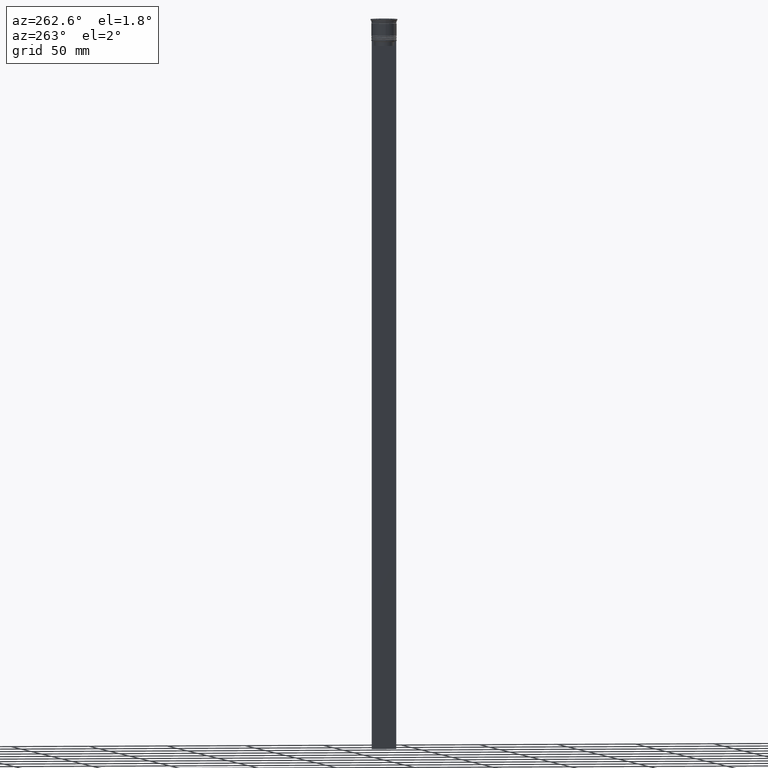
[diagram: clean part render]
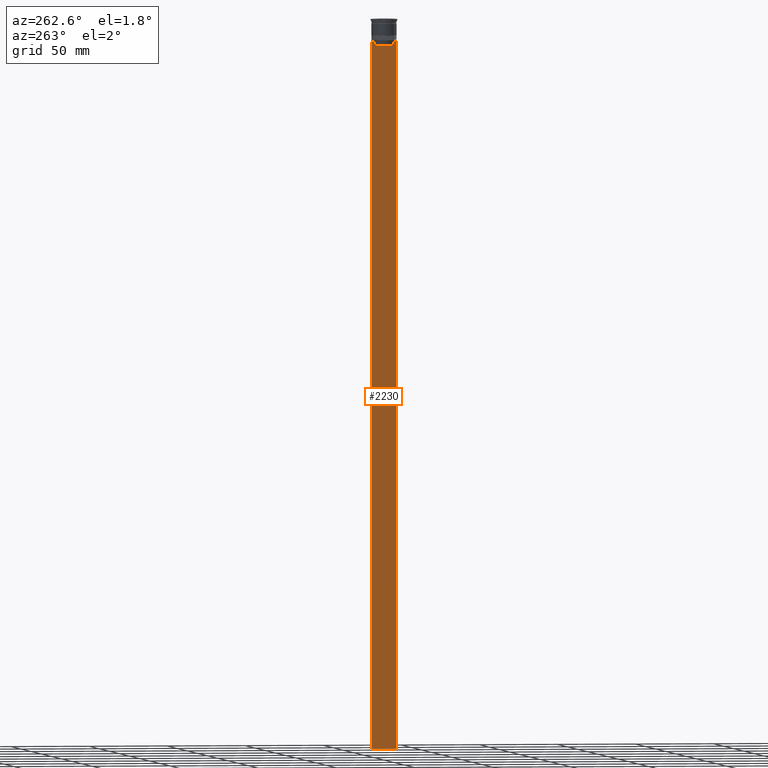
[diagram: same view with one face highlighted and labeled with its STEP entity id]
A machine part, auxiliary view. The second image highlights one B-rep face of the part: STEP entity #2230.
In plain terms, the highlighted planar face has unit normal (-1, 0, 0).
Its self-contained STEP definition (entity closure, byte-faithful):
#7 = VERTEX_POINT ( 'NONE', #2393 ) ;
#22 = DIRECTION ( 'NONE',  ( -1.000000000000000000, 0.000000000000000000, 0.000000000000000000 ) ) ;
#60 = B_SPLINE_CURVE_WITH_KNOTS ( 'NONE', 3,
 ( #1461, #1841, #1864, #1686 ),
 .UNSPECIFIED., .F., .F.,
 ( 4, 4 ),
 ( 0.02996184199614749730, 0.03067452609193703841 ),
 .UNSPECIFIED. ) ;
#112 = FACE_OUTER_BOUND ( 'NONE', #1887, .T. ) ;
#124 = VERTEX_POINT ( 'NONE', #1674 ) ;
#188 = ORIENTED_EDGE ( 'NONE', *, *, #1679, .F. ) ;
#202 = VECTOR ( 'NONE', #1874, 1000.000000000000000 ) ;
#206 = CARTESIAN_POINT ( 'NONE',  ( -0.4999999999999998890, 6.380438856379708312, -17.00000000000000000 ) ) ;
#288 = CARTESIAN_POINT ( 'NONE',  ( -0.4999999999999998890, -7.749999999999999112, -14.00000000000000178 ) ) ;
#335 = CARTESIAN_POINT ( 'NONE',  ( -0.4999999999999998890, 6.714736947114692711, -14.16668390704818847 ) ) ;
#484 = PLANE ( 'NONE',  #594 ) ;
#548 = CARTESIAN_POINT ( 'NONE',  ( -0.4999999999999998890, -7.749999999999999112, -464.0000000000000000 ) ) ;
#561 = CARTESIAN_POINT ( 'NONE',  ( -0.4999999999999998890, -6.380438856379708312, 0.000000000000000000 ) ) ;
#563 = ORIENTED_EDGE ( 'NONE', *, *, #1122, .F. ) ;
#570 = VERTEX_POINT ( 'NONE', #206 ) ;
#576 = VERTEX_POINT ( 'NONE', #2031 ) ;
#594 = AXIS2_PLACEMENT_3D ( 'NONE', #1786, #22, #1684 ) ;
#610 = CARTESIAN_POINT ( 'NONE',  ( -0.4999999999999998890, 6.380438856379708312, 0.000000000000000000 ) ) ;
#636 = DIRECTION ( 'NONE',  ( 0.000000000000000000, 0.000000000000000000, -1.000000000000000000 ) ) ;
#706 = ORIENTED_EDGE ( 'NONE', *, *, #1731, .F. ) ;
#739 = EDGE_CURVE ( 'NONE', #2318, #2220, #1846, .T. ) ;
#740 = DIRECTION ( 'NONE',  ( 0.000000000000000000, 0.000000000000000000, -1.000000000000000000 ) ) ;
#834 = CARTESIAN_POINT ( 'NONE',  ( -0.4999999999999998890, 6.881860213634098500, -14.00000000000000178 ) ) ;
#905 = ORIENTED_EDGE ( 'NONE', *, *, #1008, .F. ) ;
#964 = VECTOR ( 'NONE', #636, 1000.000000000000000 ) ;
#978 = LINE ( 'NONE', #1361, #2097 ) ;
#1008 = EDGE_CURVE ( 'NONE', #1759, #2175, #2311, .T. ) ;
#1014 = LINE ( 'NONE', #2305, #964 ) ;
#1045 = VERTEX_POINT ( 'NONE', #1198 ) ;
#1048 = EDGE_CURVE ( 'NONE', #7, #1759, #1947, .T. ) ;
#1087 = DIRECTION ( 'NONE',  ( 0.000000000000000000, 0.000000000000000000, -1.000000000000000000 ) ) ;
#1122 = EDGE_CURVE ( 'NONE', #124, #2318, #60, .T. ) ;
#1155 = VECTOR ( 'NONE', #1087, 1000.000000000000000 ) ;
#1175 = CARTESIAN_POINT ( 'NONE',  ( -0.4999999999999998890, 6.380438856379708312, -14.50000000000000000 ) ) ;
#1198 = CARTESIAN_POINT ( 'NONE',  ( -0.4999999999999998890, -6.380438856379708312, -17.00000000000000000 ) ) ;
#1239 = LINE ( 'NONE', #610, #2099 ) ;
#1266 = CARTESIAN_POINT ( 'NONE',  ( -0.4999999999999998890, 7.750000000000002665, 1.532224567009066840 ) ) ;
#1342 = CARTESIAN_POINT ( 'NONE',  ( -0.4999999999999998890, 7.750000000000002665, -464.0000000000000000 ) ) ;
#1361 = CARTESIAN_POINT ( 'NONE',  ( -0.4999999999999998890, 6.399999999999999467, -17.00000000000000000 ) ) ;
#1396 = DIRECTION ( 'NONE',  ( 0.000000000000000000, -1.000000000000000000, 0.000000000000000000 ) ) ;
#1414 = ORIENTED_EDGE ( 'NONE', *, *, #1946, .F. ) ;
#1424 = CARTESIAN_POINT ( 'NONE',  ( -0.4999999999999998890, 6.881860213634098500, -14.00000000000000178 ) ) ;
#1431 = EDGE_CURVE ( 'NONE', #7, #2362, #1810, .T. ) ;
#1452 = LINE ( 'NONE', #548, #1746 ) ;
#1453 = CARTESIAN_POINT ( 'NONE',  ( -0.4999999999999998890, 6.547597841304911626, -14.33335192459222718 ) ) ;
#1461 = CARTESIAN_POINT ( 'NONE',  ( -0.4999999999999998890, -6.380438856379708312, -14.50000000000000000 ) ) ;
#1488 = ORIENTED_EDGE ( 'NONE', *, *, #739, .F. ) ;
#1497 = ORIENTED_EDGE ( 'NONE', *, *, #1893, .F. ) ;
#1672 = ORIENTED_EDGE ( 'NONE', *, *, #1048, .F. ) ;
#1674 = CARTESIAN_POINT ( 'NONE',  ( -0.4999999999999998890, -6.380438856379708312, -14.50000000000000000 ) ) ;
#1679 = EDGE_CURVE ( 'NONE', #1045, #124, #2079, .T. ) ;
#1684 = DIRECTION ( 'NONE',  ( 0.000000000000000000, 0.000000000000000000, 1.000000000000000000 ) ) ;
#1686 = CARTESIAN_POINT ( 'NONE',  ( -0.4999999999999998890, -6.881860213634098500, -14.00000000000000178 ) ) ;
#1719 = EDGE_CURVE ( 'NONE', #2220, #576, #1014, .T. ) ;
#1721 = CARTESIAN_POINT ( 'NONE',  ( -0.4999999999999998890, 6.380438856379708312, -14.50000000000000000 ) ) ;
#1731 = EDGE_CURVE ( 'NONE', #570, #1045, #978, .T. ) ;
#1738 = ORIENTED_EDGE ( 'NONE', *, *, #1719, .F. ) ;
#1746 = VECTOR ( 'NONE', #1996, 1000.000000000000000 ) ;
#1759 = VERTEX_POINT ( 'NONE', #834 ) ;
#1782 = DIRECTION ( 'NONE',  ( 0.000000000000000000, -1.000000000000000000, 0.000000000000000000 ) ) ;
#1786 = CARTESIAN_POINT ( 'NONE',  ( -0.4999999999999998890, -7.749999999999999112, 1.532224567009066840 ) ) ;
#1810 = LINE ( 'NONE', #1266, #1155 ) ;
#1841 = CARTESIAN_POINT ( 'NONE',  ( -0.4999999999999998890, -6.547597841511246131, -14.33335192438652328 ) ) ;
#1846 = LINE ( 'NONE', #2382, #2255 ) ;
#1864 = CARTESIAN_POINT ( 'NONE',  ( -0.4999999999999998890, -6.714736947305992132, -14.16668390685738999 ) ) ;
#1874 = DIRECTION ( 'NONE',  ( -0.000000000000000000, -0.000000000000000000, 1.000000000000000000 ) ) ;
#1887 = EDGE_LOOP ( 'NONE', ( #905, #1672, #2340, #1497, #1738, #1488, #563, #188, #706, #1414 ) ) ;
#1893 = EDGE_CURVE ( 'NONE', #576, #2362, #1452, .T. ) ;
#1925 = VECTOR ( 'NONE', #1782, 1000.000000000000000 ) ;
#1946 = EDGE_CURVE ( 'NONE', #2175, #570, #1239, .T. ) ;
#1947 = LINE ( 'NONE', #288, #1925 ) ;
#1996 = DIRECTION ( 'NONE',  ( 0.000000000000000000, 1.000000000000000000, 0.000000000000000000 ) ) ;
#2031 = CARTESIAN_POINT ( 'NONE',  ( -0.4999999999999998890, -7.749999999999999112, -464.0000000000000000 ) ) ;
#2079 = LINE ( 'NONE', #561, #202 ) ;
#2097 = VECTOR ( 'NONE', #1396, 1000.000000000000000 ) ;
#2099 = VECTOR ( 'NONE', #740, 1000.000000000000000 ) ;
#2138 = CARTESIAN_POINT ( 'NONE',  ( -0.4999999999999998890, -7.749999999999999112, -14.00000000000000178 ) ) ;
#2175 = VERTEX_POINT ( 'NONE', #1175 ) ;
#2197 = DIRECTION ( 'NONE',  ( 0.000000000000000000, -1.000000000000000000, 0.000000000000000000 ) ) ;
#2220 = VERTEX_POINT ( 'NONE', #2138 ) ;
#2230 = ADVANCED_FACE ( 'NONE', ( #112 ), #484, .T. ) ;
#2255 = VECTOR ( 'NONE', #2197, 1000.000000000000000 ) ;
#2305 = CARTESIAN_POINT ( 'NONE',  ( -0.4999999999999998890, -7.749999999999999112, 1.532224567009066840 ) ) ;
#2311 = B_SPLINE_CURVE_WITH_KNOTS ( 'NONE', 3,
 ( #1424, #335, #1453, #1721 ),
 .UNSPECIFIED., .F., .F.,
 ( 4, 4 ),
 ( 0.01172465562756038263, 0.01243276816391822651 ),
 .UNSPECIFIED. ) ;
#2318 = VERTEX_POINT ( 'NONE', #2373 ) ;
#2340 = ORIENTED_EDGE ( 'NONE', *, *, #1431, .T. ) ;
#2362 = VERTEX_POINT ( 'NONE', #1342 ) ;
#2373 = CARTESIAN_POINT ( 'NONE',  ( -0.4999999999999998890, -6.881860213634098500, -14.00000000000000178 ) ) ;
#2382 = CARTESIAN_POINT ( 'NONE',  ( -0.4999999999999998890, -7.749999999999999112, -14.00000000000000178 ) ) ;
#2393 = CARTESIAN_POINT ( 'NONE',  ( -0.4999999999999998890, 7.750000000000002665, -14.00000000000000178 ) ) ;